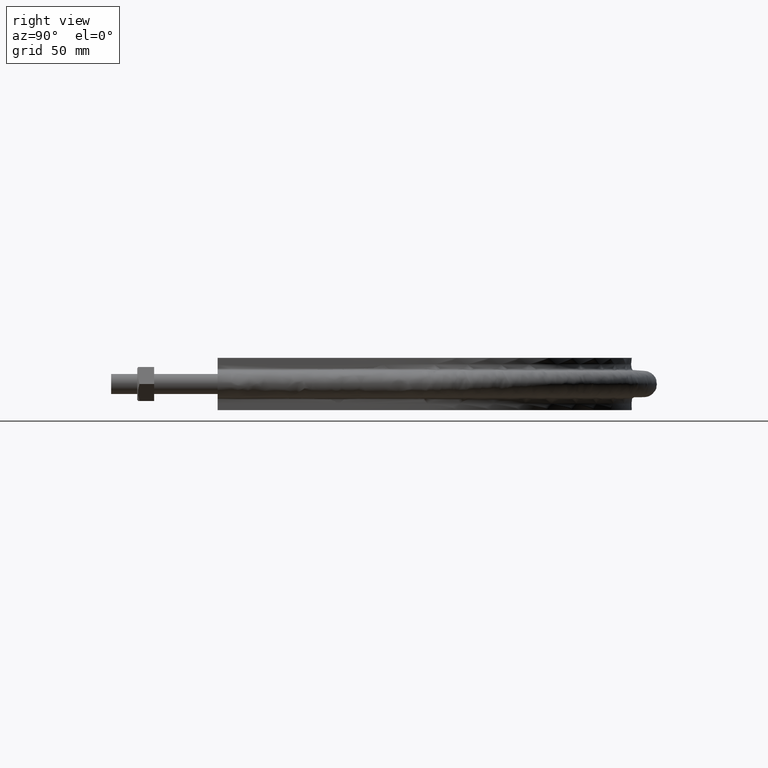
[diagram: clean part render]
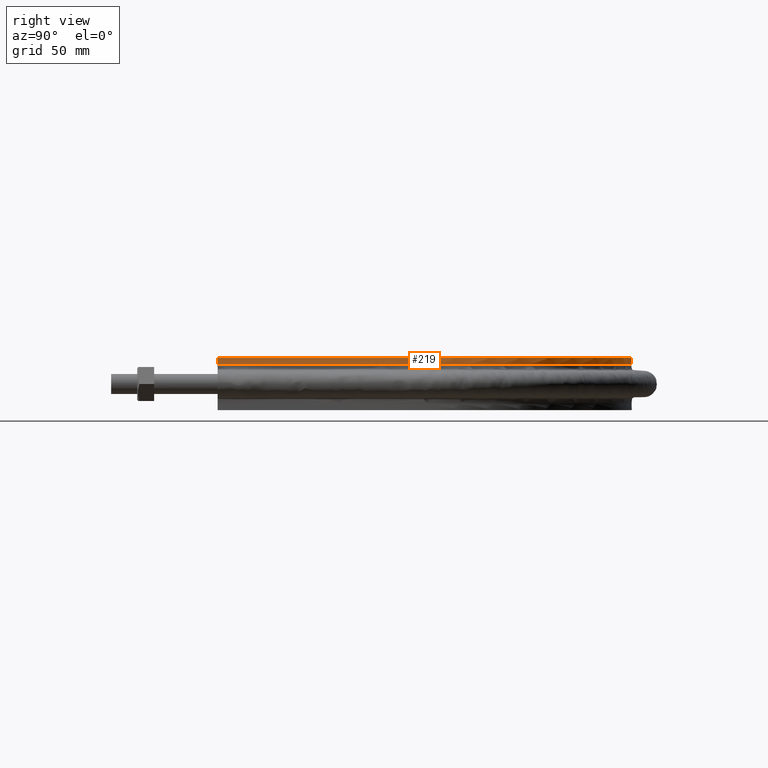
[diagram: same view with one face highlighted and labeled with its STEP entity id]
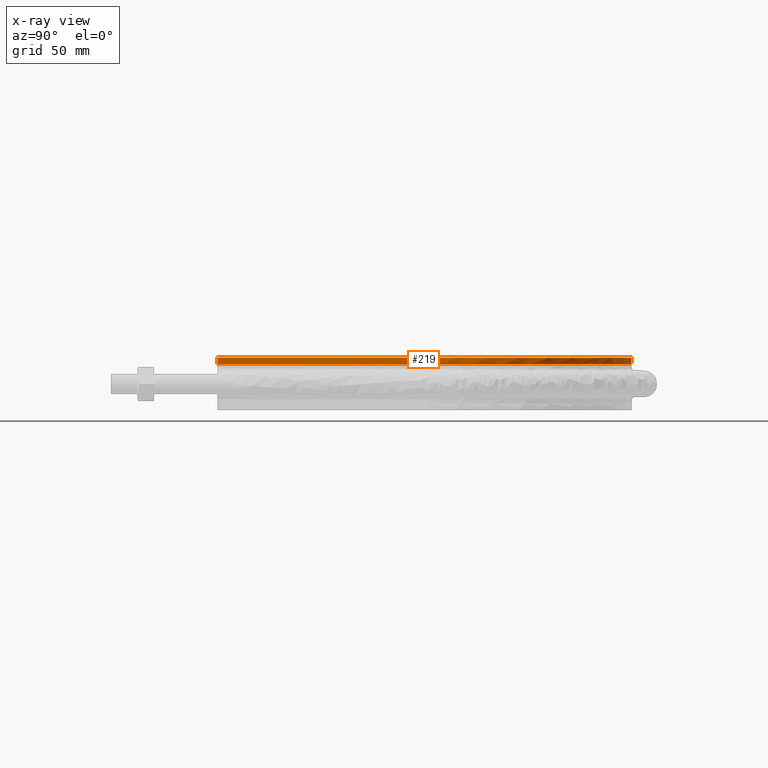
[diagram: x-ray of the same camera — body ghosted, the highlighted face saturated]
A machine part, right view. The second image highlights one B-rep face of the part: STEP entity #219.
The next image is the same camera in x-ray: the body ghosted, the highlighted face saturated — about 0% of this face is hidden behind the body in this view.
In plain terms, the highlighted face is a SurfaceOfExtrusion surface.
Its self-contained STEP definition (entity closure, byte-faithful):
#219 = ADVANCED_FACE( '', ( #260 ), #261, .F. );
#260 = FACE_OUTER_BOUND( '', #360, .T. );
#261 = SURFACE_OF_LINEAR_EXTRUSION( '', #361, #362 );
#360 = EDGE_LOOP( '', ( #1432, #1433, #1434, #1435 ) );
#361 = B_SPLINE_CURVE_WITH_KNOTS( '', 3, ( #1436, #1437, #1438, #1439, #1440, #1441, #1442, #1443, #1444, #1445, #1446, #1447, #1448, #1449, #1450, #1451, #1452, #1453, #1454, #1455, #1456, #1457, #1458, #1459, #1460, #1461, #1462, #1463, #1464, #1465, #1466, #1467, #1468, #1469, #1470, #1471, #1472, #1473, #1474, #1475, #1476, #1477, #1478, #1479, #1480, #1481, #1482, #1483, #1484, #1485, #1486, #1487, #1488, #1489, #1490, #1491, #1492, #1493, #1494, #1495, #1496, #1497, #1498, #1499, #1500, #1501, #1502, #1503, #1504, #1505, #1506, #1507, #1508, #1509, #1510, #1511, #1512, #1513, #1514, #1515, #1516, #1517, #1518, #1519, #1520, #1521, #1522, #1523, #1524, #1525, #1526, #1527, #1528, #1529, #1530, #1531, #1532, #1533, #1534 ), .UNSPECIFIED., .F., .F., ( 4, 1, 1, 2, 2, 2, 2, 2, 2, 2, 2, 2, 2, 2, 2, 2, 2, 2, 2, 2, 2, 2, 2, 2, 2, 2, 2, 2, 2, 2, 2, 2, 2, 2, 2, 2, 2, 2, 2, 2, 2, 2, 2, 2, 2, 2, 2, 2, 2, 1, 4 ), ( 0.000000000000000, 0.125000000000000, 0.187500000000001, 0.191406250000001, 0.195312500000001, 0.203125000000001, 0.218750000000000, 0.234375000000000, 0.242187500000000, 0.250000000000000, 0.281250000000000, 0.296874999999999, 0.312499999999999, 0.343749999999999, 0.359374999999999, 0.374999999999998, 0.382812499999998, 0.390624999999998, 0.406249999999998, 0.421874999999998, 0.437499999999998, 0.445312499999998, 0.453124999999998, 0.468749999999997, 0.484374999999997, 0.499999999999997, 0.507812499999997, 0.515624999999997, 0.531249999999997, 0.562499999999996, 0.570312499999996, 0.578124999999996, 0.593749999999996, 0.624999999999996, 0.640624999999995, 0.648437499999995, 0.656249999999995, 0.687499999999995, 0.703124999999995, 0.710937499999995, 0.718749999999994, 0.749999999999994, 0.765624999999994, 0.773437499999994, 0.781249999999994, 0.796874999999994, 0.804687499999994, 0.808593749999994, 0.812499999999994, 0.874999999999996, 1.00000000000000 ), .UNSPECIFIED. );
#362 = VECTOR( '', #1535, 1000.00000000000 );
#1432 = ORIENTED_EDGE( '', *, *, #1897, .F. );
#1433 = ORIENTED_EDGE( '', *, *, #1898, .T. );
#1434 = ORIENTED_EDGE( '', *, *, #1899, .T. );
#1435 = ORIENTED_EDGE( '', *, *, #1900, .F. );
#1436 = CARTESIAN_POINT( '', ( -161.250000000000, 81.6600000000001, 15.0000000000000 ) );
#1437 = CARTESIAN_POINT( '', ( -161.250000000000, 115.563927276507, 15.0000000000000 ) );
#1438 = CARTESIAN_POINT( '', ( -161.250000000000, 166.419818191268, 15.0000000000000 ) );
#1439 = CARTESIAN_POINT( '', ( -161.250000000000, 218.335206833420, 15.0000000000000 ) );
#1440 = CARTESIAN_POINT( '', ( -161.250000000000, 236.346668199065, 15.0000000000000 ) );
#1441 = CARTESIAN_POINT( '', ( -161.250000000000, 238.465663653846, 15.0000000000000 ) );
#1442 = CARTESIAN_POINT( '', ( -161.243741615224, 239.524697165994, 15.0000000000000 ) );
#1443 = CARTESIAN_POINT( '', ( -161.187611923992, 242.699026932333, 15.0000000000000 ) );
#1444 = CARTESIAN_POINT( '', ( -161.108242863812, 244.812135192751, 15.0000000000000 ) );
#1445 = CARTESIAN_POINT( '', ( -160.745588715640, 251.142221711587, 15.0000000000000 ) );
#1446 = CARTESIAN_POINT( '', ( -160.338016678097, 255.349980994409, 15.0000000000000 ) );
#1447 = CARTESIAN_POINT( '', ( -159.191876458923, 263.740947944732, 15.0000000000000 ) );
#1448 = CARTESIAN_POINT( '', ( -158.453325821623, 267.924156913583, 15.0000000000000 ) );
#1449 = CARTESIAN_POINT( '', ( -157.091309531563, 274.180115817004, 15.0000000000000 ) );
#1450 = CARTESIAN_POINT( '', ( -156.594870880089, 276.262287970310, 15.0000000000000 ) );
#1451 = CARTESIAN_POINT( '', ( -155.515254592872, 280.420198418966, 15.0000000000000 ) );
#1452 = CARTESIAN_POINT( '', ( -154.930819288684, 282.499501200111, 15.0000000000000 ) );
#1453 = CARTESIAN_POINT( '', ( -151.816759126114, 292.782149241196, 15.0000000000000 ) );
#1454 = CARTESIAN_POINT( '', ( -148.696455905705, 300.710402629824, 15.0000000000000 ) );
#1455 = CARTESIAN_POINT( '', ( -143.110303796314, 312.173924312049, 15.0000000000000 ) );
#1456 = CARTESIAN_POINT( '', ( -141.096992685260, 315.923474609417, 15.0000000000000 ) );
#1457 = CARTESIAN_POINT( '', ( -136.764997750155, 323.277977603622, 15.0000000000000 ) );
#1458 = CARTESIAN_POINT( '', ( -134.445179291471, 326.884599627094, 15.0000000000000 ) );
#1459 = CARTESIAN_POINT( '', ( -127.018507755949, 337.469813303293, 15.0000000000000 ) );
#1460 = CARTESIAN_POINT( '', ( -121.570256986600, 344.035627793821, 15.0000000000000 ) );
#1461 = CARTESIAN_POINT( '', ( -112.681469462408, 353.176788939192, 15.0000000000000 ) );
#1462 = CARTESIAN_POINT( '', ( -109.599239667978, 356.106015913386, 15.0000000000000 ) );
#1463 = CARTESIAN_POINT( '', ( -103.195598111763, 361.728242826460, 15.0000000000000 ) );
#1464 = CARTESIAN_POINT( '', ( -99.8742027120111, 364.421258925232, 15.0000000000000 ) );
#1465 = CARTESIAN_POINT( '', ( -94.7076655551528, 368.278617698205, 15.0000000000000 ) );
#1466 = CARTESIAN_POINT( '', ( -92.9523128122843, 369.535410245451, 15.0000000000000 ) );
#1467 = CARTESIAN_POINT( '', ( -89.4103563407889, 371.965747523355, 15.0000000000000 ) );
#1468 = CARTESIAN_POINT( '', ( -87.6203519636309, 373.141975231298, 15.0000000000000 ) );
#1469 = CARTESIAN_POINT( '', ( -82.1938545562555, 376.555051609463, 15.0000000000000 ) );
#1470 = CARTESIAN_POINT( '', ( -78.5007228381527, 378.675977497979, 15.0000000000000 ) );
#1471 = CARTESIAN_POINT( '', ( -70.9660651589494, 382.614109784332, 15.0000000000000 ) );
#1472 = CARTESIAN_POINT( '', ( -67.1247782821043, 384.431805517514, 15.0000000000000 ) );
#1473 = CARTESIAN_POINT( '', ( -59.2949804331995, 387.765872442500, 15.0000000000000 ) );
#1474 = CARTESIAN_POINT( '', ( -55.3064757162415, 389.282256436662, 15.0000000000000 ) );
#1475 = CARTESIAN_POINT( '', ( -49.2110169882597, 391.326165201076, 15.0000000000000 ) );
#1476 = CARTESIAN_POINT( '', ( -47.1588662869755, 391.969403219013, 15.0000000000000 ) );
#1477 = CARTESIAN_POINT( '', ( -43.0225422699778, 393.175460393611, 15.0000000000000 ) );
#1478 = CARTESIAN_POINT( '', ( -40.9492828236587, 393.735163863551, 15.0000000000000 ) );
#1479 = CARTESIAN_POINT( '', ( -34.7144271105598, 395.286125774618, 15.0000000000000 ) );
#1480 = CARTESIAN_POINT( '', ( -30.5377759878195, 396.149427107818, 15.0000000000000 ) );
#1481 = CARTESIAN_POINT( '', ( -22.1447346015546, 397.538271276923, 15.0000000000000 ) );
#1482 = CARTESIAN_POINT( '', ( -17.9283982116385, 398.064272005694, 15.0000000000000 ) );
#1483 = CARTESIAN_POINT( '', ( -9.45655674837369, 398.783363506043, 15.0000000000000 ) );
#1484 = CARTESIAN_POINT( '', ( -5.20105235312334, 398.976460041045, 15.0000000000000 ) );
#1485 = CARTESIAN_POINT( '', ( 1.21197356660109, 399.013083693530, 15.0000000000000 ) );
#1486 = CARTESIAN_POINT( '', ( 3.35461816619223, 398.983055613132, 15.0000000000000 ) );
#1487 = CARTESIAN_POINT( '', ( 7.65000933184692, 398.837138888968, 15.0000000000000 ) );
#1488 = CARTESIAN_POINT( '', ( 9.80526541349927, 398.720878236830, 15.0000000000000 ) );
#1489 = CARTESIAN_POINT( '', ( 16.2294008466087, 398.245673768406, 15.0000000000000 ) );
#1490 = CARTESIAN_POINT( '', ( 20.4744508388070, 397.760409311961, 15.0000000000000 ) );
#1491 = CARTESIAN_POINT( '', ( 33.0983091091204, 395.807403659312, 15.0000000000000 ) );
#1492 = CARTESIAN_POINT( '', ( 41.3659328497672, 393.842928972443, 15.0000000000000 ) );
#1493 = CARTESIAN_POINT( '', ( 51.5169566627442, 390.567495824280, 15.0000000000000 ) );
#1494 = CARTESIAN_POINT( '', ( 53.5379220141997, 389.871130748456, 15.0000000000000 ) );
#1495 = CARTESIAN_POINT( '', ( 57.5611393422531, 388.394795805829, 15.0000000000000 ) );
#1496 = CARTESIAN_POINT( '', ( 59.5651010699853, 387.614118598494, 15.0000000000000 ) );
#1497 = CARTESIAN_POINT( '', ( 65.5375088210214, 385.148760287829, 15.0000000000000 ) );
#1498 = CARTESIAN_POINT( '', ( 69.4271107189928, 383.357633487351, 15.0000000000000 ) );
#1499 = CARTESIAN_POINT( '', ( 80.8263169977384, 377.551870276663, 15.0000000000000 ) );
#1500 = CARTESIAN_POINT( '', ( 88.0655785560032, 373.103658782526, 15.0000000000000 ) );
#1501 = CARTESIAN_POINT( '', ( 98.3911116748475, 365.575941476319, 15.0000000000000 ) );
#1502 = CARTESIAN_POINT( '', ( 101.743876907629, 362.923837491375, 15.0000000000000 ) );
#1503 = CARTESIAN_POINT( '', ( 106.636124312730, 358.726120953866, 15.0000000000000 ) );
#1504 = CARTESIAN_POINT( '', ( 108.245579686573, 357.288515671054, 15.0000000000000 ) );
#1505 = CARTESIAN_POINT( '', ( 111.390201462317, 354.365055123601, 15.0000000000000 ) );
#1506 = CARTESIAN_POINT( '', ( 112.928863214009, 352.876337280872, 15.0000000000000 ) );
#1507 = CARTESIAN_POINT( '', ( 120.455962419381, 345.299443254918, 15.0000000000000 ) );
#1508 = CARTESIAN_POINT( '', ( 125.946497327452, 338.811934998674, 15.0000000000000 ) );
#1509 = CARTESIAN_POINT( '', ( 133.394129452832, 328.448537556354, 15.0000000000000 ) );
#1510 = CARTESIAN_POINT( '', ( 135.745443095657, 324.888821211344, 15.0000000000000 ) );
#1511 = CARTESIAN_POINT( '', ( 139.072140578718, 319.388622038567, 15.0000000000000 ) );
#1512 = CARTESIAN_POINT( '', ( 140.148607424952, 317.526591994231, 15.0000000000000 ) );
#1513 = CARTESIAN_POINT( '', ( 142.229173669268, 313.755686103863, 15.0000000000000 ) );
#1514 = CARTESIAN_POINT( '', ( 143.228421564998, 311.855781192481, 15.0000000000000 ) );
#1515 = CARTESIAN_POINT( '', ( 148.022708969335, 302.285132267420, 15.0000000000000 ) );
#1516 = CARTESIAN_POINT( '', ( 151.214899617919, 294.402074295562, 15.0000000000000 ) );
#1517 = CARTESIAN_POINT( '', ( 155.048522990437, 282.241270071979, 15.0000000000000 ) );
#1518 = CARTESIAN_POINT( '', ( 156.167598529334, 278.131742163795, 15.0000000000000 ) );
#1519 = CARTESIAN_POINT( '', ( 157.605754713961, 271.882765056023, 15.0000000000000 ) );
#1520 = CARTESIAN_POINT( '', ( 158.045000764586, 269.785636236286, 15.0000000000000 ) );
#1521 = CARTESIAN_POINT( '', ( 158.842043052515, 265.562693243972, 15.0000000000000 ) );
#1522 = CARTESIAN_POINT( '', ( 159.199937733800, 263.435033158721, 15.0000000000000 ) );
#1523 = CARTESIAN_POINT( '', ( 160.142503518764, 257.058048449527, 15.0000000000000 ) );
#1524 = CARTESIAN_POINT( '', ( 160.599631427592, 252.799128268431, 15.0000000000000 ) );
#1525 = CARTESIAN_POINT( '', ( 161.030667889772, 246.399450853400, 15.0000000000000 ) );
#1526 = CARTESIAN_POINT( '', ( 161.131834701316, 244.264339110525, 15.0000000000000 ) );
#1527 = CARTESIAN_POINT( '', ( 161.219474436493, 241.058827396670, 15.0000000000000 ) );
#1528 = CARTESIAN_POINT( '', ( 161.237998318118, 239.989849285454, 15.0000000000000 ) );
#1529 = CARTESIAN_POINT( '', ( 161.253558329441, 237.850939813204, 15.0000000000000 ) );
#1530 = CARTESIAN_POINT( '', ( 161.250000000000, 236.780982080492, 15.0000000000000 ) );
#1531 = CARTESIAN_POINT( '', ( 161.250000000000, 218.594384181400, 15.0000000000000 ) );
#1532 = CARTESIAN_POINT( '', ( 161.250000000000, 167.243990113375, 15.0000000000000 ) );
#1533 = CARTESIAN_POINT( '', ( 161.250000000000, 115.893596045350, 15.0000000000000 ) );
#1534 = CARTESIAN_POINT( '', ( 161.250000000000, 81.6599999999994, 15.0000000000000 ) );
#1535 = DIRECTION( '', ( 0.000000000000000, 0.000000000000000, 1.00000000000000 ) );
#1897 = EDGE_CURVE( '', #1969, #1970, #1971, .T. );
#1898 = EDGE_CURVE( '', #1969, #1972, #1973, .T. );
#1899 = EDGE_CURVE( '', #1972, #1974, #1975, .T. );
#1900 = EDGE_CURVE( '', #1970, #1974, #1976, .T. );
#1969 = VERTEX_POINT( '', #2095 );
#1970 = VERTEX_POINT( '', #2096 );
#1971 = B_SPLINE_CURVE_WITH_KNOTS( '', 3, ( #2097, #2098, #2099, #2100, #2101, #2102, #2103, #2104, #2105, #2106, #2107, #2108, #2109, #2110, #2111, #2112, #2113, #2114 ), .UNSPECIFIED., .F., .F., ( 4, 3, 1, 1, 1, 1, 1, 1, 1, 1, 3, 4 ), ( 0.000000000000000, 0.0909090909090909, 0.181818181818182, 0.272727272727273, 0.363636363636364, 0.454545454545455, 0.545454545454545, 0.636363636363636, 0.727272727272727, 0.818181818181818, 0.909090909090909, 1.00000000000000 ), .UNSPECIFIED. );
#1972 = VERTEX_POINT( '', #2115 );
#1973 = LINE( '', #2116, #2117 );
#1974 = VERTEX_POINT( '', #2118 );
#1975 = B_SPLINE_CURVE_WITH_KNOTS( '', 3, ( #2119, #2120, #2121, #2122, #2123, #2124, #2125, #2126, #2127, #2128, #2129, #2130, #2131, #2132, #2133, #2134, #2135, #2136, #2137, #2138, #2139, #2140, #2141, #2142, #2143, #2144, #2145, #2146, #2147, #2148, #2149, #2150, #2151, #2152, #2153, #2154, #2155, #2156, #2157, #2158, #2159, #2160, #2161, #2162, #2163, #2164, #2165, #2166, #2167, #2168, #2169, #2170, #2171, #2172, #2173, #2174, #2175, #2176, #2177, #2178, #2179, #2180, #2181, #2182, #2183, #2184, #2185, #2186, #2187, #2188, #2189, #2190, #2191, #2192, #2193, #2194, #2195, #2196, #2197, #2198, #2199, #2200, #2201, #2202, #2203, #2204, #2205, #2206, #2207, #2208, #2209, #2210, #2211, #2212, #2213, #2214, #2215, #2216, #2217, #2218, #2219, #2220, #2221, #2222, #2223, #2224, #2225, #2226, #2227, #2228, #2229, #2230 ), .UNSPECIFIED., .F., .F., ( 4, 1, 2, 2, 2, 2, 2, 2, 2, 2, 2, 2, 2, 2, 2, 2, 2, 2, 2, 2, 2, 2, 2, 2, 2, 2, 2, 2, 2, 2, 2, 2, 2, 2, 2, 2, 2, 2, 2, 2, 2, 2, 2, 2, 2, 2, 2, 2, 2, 2, 2, 2, 2, 2, 2, 1, 4 ), ( 4.16333634234434E-017, 0.102905858842174, 0.154358788263261, 0.157574596352079, 0.160790404440896, 0.167222020618532, 0.180085252973804, 0.192948485329075, 0.205811717684346, 0.212243333861982, 0.215459141950800, 0.218674950039618, 0.231538182394889, 0.244401414750161, 0.257264647105432, 0.270127879460704, 0.276559495638340, 0.282991111815975, 0.295854344171247, 0.308717576526518, 0.321580808881790, 0.328012425059426, 0.334444041237062, 0.347307273592333, 0.360170505947605, 0.373033738302876, 0.379465354480512, 0.385896970658148, 0.398760203013419, 0.411623435368691, 0.424486667723962, 0.437349900079234, 0.463076364789777, 0.475939597145048, 0.488802829500320, 0.495234445677955, 0.501666061855591, 0.514529294210863, 0.527392526566134, 0.540255758921406, 0.546687375099042, 0.553118991276677, 0.565982223631949, 0.578845455987221, 0.591708688342492, 0.598140304520128, 0.604571920697764, 0.617435153053036, 0.630298385408308, 0.643161617763579, 0.656024850118851, 0.662456466296487, 0.665672274385305, 0.668888082474123, 0.694614547184667, 0.720341011895211, 0.823246870737388 ), .UNSPECIFIED. );
#1976 = LINE( '', #2231, #2232 );
#2095 = CARTESIAN_POINT( '', ( -161.250000000000, 81.6600000000000, 15.0000000000000 ) );
#2096 = CARTESIAN_POINT( '', ( 161.250000000000, 81.6600000000000, 15.0000000000000 ) );
#2097 = CARTESIAN_POINT( '', ( -161.250000000000, 81.6600000000000, 15.0000000000000 ) );
#2098 = CARTESIAN_POINT( '', ( -161.250000000000, 133.693333333333, 15.0000000000000 ) );
#2099 = CARTESIAN_POINT( '', ( -161.250000000000, 185.726666666667, 15.0000000000000 ) );
#2100 = CARTESIAN_POINT( '', ( -161.250000000000, 237.760000000000, 15.0000000000000 ) );
#2101 = CARTESIAN_POINT( '', ( -161.250000000000, 256.509565895344, 15.0000000000000 ) );
#2102 = CARTESIAN_POINT( '', ( -154.633958016895, 294.047333691719, 15.0000000000000 ) );
#2103 = CARTESIAN_POINT( '', ( -126.058757551235, 343.534471903553, 15.0000000000000 ) );
#2104 = CARTESIAN_POINT( '', ( -82.2790104957763, 380.271791065797, 15.0000000000000 ) );
#2105 = CARTESIAN_POINT( '', ( -28.5752004656595, 399.817941994703, 15.0000000000000 ) );
#2106 = CARTESIAN_POINT( '', ( 28.5752004656597, 399.817941994703, 15.0000000000000 ) );
#2107 = CARTESIAN_POINT( '', ( 82.2790104957765, 380.271791065797, 15.0000000000000 ) );
#2108 = CARTESIAN_POINT( '', ( 126.058757551235, 343.534471903553, 15.0000000000000 ) );
#2109 = CARTESIAN_POINT( '', ( 154.633958016895, 294.047333691719, 15.0000000000000 ) );
#2110 = CARTESIAN_POINT( '', ( 161.250000000000, 256.509565895344, 15.0000000000000 ) );
#2111 = CARTESIAN_POINT( '', ( 161.250000000000, 237.760000000000, 15.0000000000000 ) );
#2112 = CARTESIAN_POINT( '', ( 161.250000000000, 185.726666666667, 15.0000000000000 ) );
#2113 = CARTESIAN_POINT( '', ( 161.250000000000, 133.693333333333, 15.0000000000000 ) );
#2114 = CARTESIAN_POINT( '', ( 161.250000000000, 81.6600000000000, 15.0000000000000 ) );
#2115 = CARTESIAN_POINT( '', ( -161.250000000000, 81.6600000000001, 20.0000000000000 ) );
#2116 = CARTESIAN_POINT( '', ( -161.250000000000, 81.6600000000002, 15.0000000000000 ) );
#2117 = VECTOR( '', #2860, 1000.00000000000 );
#2118 = CARTESIAN_POINT( '', ( 161.250000000000, 81.6599999999997, 20.0000000000000 ) );
#2119 = CARTESIAN_POINT( '', ( -161.250000000000, 81.6600000000001, 20.0000000000000 ) );
#2120 = CARTESIAN_POINT( '', ( -161.250000000000, 115.961965199335, 20.0000000000000 ) );
#2121 = CARTESIAN_POINT( '', ( -161.250000000000, 167.414912998338, 20.0000000000000 ) );
#2122 = CARTESIAN_POINT( '', ( -161.250000000001, 218.867860797341, 20.0000000000000 ) );
#2123 = CARTESIAN_POINT( '', ( -161.250000000000, 237.090779809488, 20.0000000000000 ) );
#2124 = CARTESIAN_POINT( '', ( -161.251970915232, 238.162717887780, 20.0000000000000 ) );
#2125 = CARTESIAN_POINT( '', ( -161.233234905318, 240.306574877112, 20.0000000000000 ) );
#2126 = CARTESIAN_POINT( '', ( -161.212573749003, 241.378493826837, 20.0000000000000 ) );
#2127 = CARTESIAN_POINT( '', ( -161.118167583804, 244.594223272436, 20.0000000000000 ) );
#2128 = CARTESIAN_POINT( '', ( -161.012016167499, 246.737364921140, 20.0000000000000 ) );
#2129 = CARTESIAN_POINT( '', ( -160.568059920858, 253.130988149219, 20.0000000000000 ) );
#2130 = CARTESIAN_POINT( '', ( -160.104407936144, 257.357673118891, 20.0000000000000 ) );
#2131 = CARTESIAN_POINT( '', ( -158.852451542726, 265.741864153590, 20.0000000000000 ) );
#2132 = CARTESIAN_POINT( '', ( -158.063775191925, 269.899290962943, 20.0000000000000 ) );
#2133 = CARTESIAN_POINT( '', ( -156.162945028249, 278.145216045006, 20.0000000000000 ) );
#2134 = CARTESIAN_POINT( '', ( -155.050685017919, 282.233691688519, 20.0000000000000 ) );
#2135 = CARTESIAN_POINT( '', ( -153.134376609016, 288.313577201092, 20.0000000000000 ) );
#2136 = CARTESIAN_POINT( '', ( -152.454186526902, 290.331379550327, 20.0000000000000 ) );
#2137 = CARTESIAN_POINT( '', ( -151.370652027000, 293.344605513939, 20.0000000000000 ) );
#2138 = CARTESIAN_POINT( '', ( -150.998932061583, 294.346767858148, 20.0000000000000 ) );
#2139 = CARTESIAN_POINT( '', ( -150.234219283645, 296.346559599476, 20.0000000000000 ) );
#2140 = CARTESIAN_POINT( '', ( -149.840760044902, 297.345319193445, 20.0000000000000 ) );
#2141 = CARTESIAN_POINT( '', ( -147.826549821755, 302.311248733167, 20.0000000000000 ) );
#2142 = CARTESIAN_POINT( '', ( -146.066449266341, 306.193281154291, 20.0000000000000 ) );
#2143 = CARTESIAN_POINT( '', ( -142.261276995409, 313.783543362078, 20.0000000000000 ) );
#2144 = CARTESIAN_POINT( '', ( -140.215650977874, 317.491435082423, 20.0000000000000 ) );
#2145 = CARTESIAN_POINT( '', ( -135.842265497154, 324.735146597989, 20.0000000000000 ) );
#2146 = CARTESIAN_POINT( '', ( -133.514264763887, 328.270819243668, 20.0000000000000 ) );
#2147 = CARTESIAN_POINT( '', ( -128.572511593199, 335.167885850243, 20.0000000000000 ) );
#2148 = CARTESIAN_POINT( '', ( -125.958458072441, 338.529096181761, 20.0000000000000 ) );
#2149 = CARTESIAN_POINT( '', ( -121.814782223253, 343.435151638855, 20.0000000000000 ) );
#2150 = CARTESIAN_POINT( '', ( -120.395398909186, 345.048693263547, 20.0000000000000 ) );
#2151 = CARTESIAN_POINT( '', ( -117.508079182862, 348.201555524784, 20.0000000000000 ) );
#2152 = CARTESIAN_POINT( '', ( -116.037116900755, 349.744609171353, 20.0000000000000 ) );
#2153 = CARTESIAN_POINT( '', ( -111.544115229341, 354.275828924885, 20.0000000000000 ) );
#2154 = CARTESIAN_POINT( '', ( -108.441840326105, 357.165906302353, 20.0000000000000 ) );
#2155 = CARTESIAN_POINT( '', ( -102.027993104789, 362.690192845028, 20.0000000000000 ) );
#2156 = CARTESIAN_POINT( '', ( -98.7162675526882, 365.324214680089, 20.0000000000000 ) );
#2157 = CARTESIAN_POINT( '', ( -91.8819928807456, 370.334524400557, 20.0000000000000 ) );
#2158 = CARTESIAN_POINT( '', ( -88.3596907755534, 372.711114263877, 20.0000000000000 ) );
#2159 = CARTESIAN_POINT( '', ( -82.9131148904033, 376.076579870328, 20.0000000000000 ) );
#2160 = CARTESIAN_POINT( '', ( -81.0683875074570, 377.166193615633, 20.0000000000000 ) );
#2161 = CARTESIAN_POINT( '', ( -77.3317958302741, 379.272768040218, 20.0000000000000 ) );
#2162 = CARTESIAN_POINT( '', ( -75.4485733332860, 380.284931874204, 20.0000000000000 ) );
#2163 = CARTESIAN_POINT( '', ( -69.7551854747389, 383.200972491039, 20.0000000000000 ) );
#2164 = CARTESIAN_POINT( '', ( -65.9013247113453, 384.984467170128, 20.0000000000000 ) );
#2165 = CARTESIAN_POINT( '', ( -58.0804202517138, 388.239634254255, 20.0000000000000 ) );
#2166 = CARTESIAN_POINT( '', ( -54.1132805496319, 389.711042160399, 20.0000000000000 ) );
#2167 = CARTESIAN_POINT( '', ( -46.0659693145768, 392.342451988917, 20.0000000000000 ) );
#2168 = CARTESIAN_POINT( '', ( -41.9857908178061, 393.502434725825, 20.0000000000000 ) );
#2169 = CARTESIAN_POINT( '', ( -35.7788001219004, 395.003484577897, 20.0000000000000 ) );
#2170 = CARTESIAN_POINT( '', ( -33.6953274684594, 395.463953402796, 20.0000000000000 ) );
#2171 = CARTESIAN_POINT( '', ( -29.4987718017198, 396.303313649412, 20.0000000000000 ) );
#2172 = CARTESIAN_POINT( '', ( -27.3829209230280, 396.682429210544, 20.0000000000000 ) );
#2173 = CARTESIAN_POINT( '', ( -21.0466853046310, 397.686912615105, 20.0000000000000 ) );
#2174 = CARTESIAN_POINT( '', ( -16.8206764592023, 398.183540422579, 20.0000000000000 ) );
#2175 = CARTESIAN_POINT( '', ( -8.36508872482800, 398.843213611926, 20.0000000000000 ) );
#2176 = CARTESIAN_POINT( '', ( -4.13550690496985, 399.005985131345, 20.0000000000000 ) );
#2177 = CARTESIAN_POINT( '', ( 4.32719410328482, 399.000998872240, 20.0000000000000 ) );
#2178 = CARTESIAN_POINT( '', ( 8.56031456561338, 398.833122058385, 20.0000000000000 ) );
#2179 = CARTESIAN_POINT( '', ( 17.0301467584853, 398.161802783819, 20.0000000000000 ) );
#2180 = CARTESIAN_POINT( '', ( 21.2680294419037, 397.657983918810, 20.0000000000000 ) );
#2181 = CARTESIAN_POINT( '', ( 33.9802165437896, 395.623709791004, 20.0000000000000 ) );
#2182 = CARTESIAN_POINT( '', ( 42.2310729782497, 393.606818672319, 20.0000000000000 ) );
#2183 = CARTESIAN_POINT( '', ( 54.2908410328614, 389.647616386271, 20.0000000000000 ) );
#2184 = CARTESIAN_POINT( '', ( 58.2576520963785, 388.171179239561, 20.0000000000000 ) );
#2185 = CARTESIAN_POINT( '', ( 66.0843154338650, 384.902728651073, 20.0000000000000 ) );
#2186 = CARTESIAN_POINT( '', ( 69.9441313402946, 383.110607908776, 20.0000000000000 ) );
#2187 = CARTESIAN_POINT( '', ( 75.6509454424334, 380.177805907142, 20.0000000000000 ) );
#2188 = CARTESIAN_POINT( '', ( 77.5426772134473, 379.157302999127, 20.0000000000000 ) );
#2189 = CARTESIAN_POINT( '', ( 81.2664045092939, 377.050881392271, 20.0000000000000 ) );
#2190 = CARTESIAN_POINT( '', ( 83.1015353490393, 375.963526390945, 20.0000000000000 ) );
#2191 = CARTESIAN_POINT( '', ( 88.5280133782913, 372.600668685160, 20.0000000000000 ) );
#2192 = CARTESIAN_POINT( '', ( 92.0404830075295, 370.224420446988, 20.0000000000000 ) );
#2193 = CARTESIAN_POINT( '', ( 98.8614844593562, 365.211446553421, 20.0000000000000 ) );
#2194 = CARTESIAN_POINT( '', ( 102.169735354850, 362.574362086852, 20.0000000000000 ) );
#2195 = CARTESIAN_POINT( '', ( 108.581664191107, 357.038904500290, 20.0000000000000 ) );
#2196 = CARTESIAN_POINT( '', ( 111.685472441704, 354.140697817162, 20.0000000000000 ) );
#2197 = CARTESIAN_POINT( '', ( 116.183929168266, 349.592534669378, 20.0000000000000 ) );
#2198 = CARTESIAN_POINT( '', ( 117.657197177955, 348.042994176750, 20.0000000000000 ) );
#2199 = CARTESIAN_POINT( '', ( 120.549969424761, 344.875243978805, 20.0000000000000 ) );
#2200 = CARTESIAN_POINT( '', ( 121.961372900329, 343.265822195802, 20.0000000000000 ) );
#2201 = CARTESIAN_POINT( '', ( 126.084231292281, 338.370894215506, 20.0000000000000 ) );
#2202 = CARTESIAN_POINT( '', ( 128.687862132818, 335.014884428991, 20.0000000000000 ) );
#2203 = CARTESIAN_POINT( '', ( 133.614104291603, 328.123086121269, 20.0000000000000 ) );
#2204 = CARTESIAN_POINT( '', ( 135.936741699420, 324.587314290540, 20.0000000000000 ) );
#2205 = CARTESIAN_POINT( '', ( 140.303187725939, 317.337393388616, 20.0000000000000 ) );
#2206 = CARTESIAN_POINT( '', ( 142.347002366260, 313.623248169678, 20.0000000000000 ) );
#2207 = CARTESIAN_POINT( '', ( 145.199960385569, 307.915917263360, 20.0000000000000 ) );
#2208 = CARTESIAN_POINT( '', ( 146.115586045392, 305.990852287166, 20.0000000000000 ) );
#2209 = CARTESIAN_POINT( '', ( 147.874337612238, 302.094341522095, 20.0000000000000 ) );
#2210 = CARTESIAN_POINT( '', ( 148.719087610205, 300.118601627142, 20.0000000000000 ) );
#2211 = CARTESIAN_POINT( '', ( 151.123452875939, 294.167112728362, 20.0000000000000 ) );
#2212 = CARTESIAN_POINT( '', ( 152.557447500547, 290.159603132712, 20.0000000000000 ) );
#2213 = CARTESIAN_POINT( '', ( 155.097987031580, 282.067332444642, 20.0000000000000 ) );
#2214 = CARTESIAN_POINT( '', ( 156.204785204810, 277.982631102588, 20.0000000000000 ) );
#2215 = CARTESIAN_POINT( '', ( 158.096571563126, 269.737307439230, 20.0000000000000 ) );
#2216 = CARTESIAN_POINT( '', ( 158.881533638948, 265.576678958265, 20.0000000000000 ) );
#2217 = CARTESIAN_POINT( '', ( 160.126485202368, 257.178754900732, 20.0000000000000 ) );
#2218 = CARTESIAN_POINT( '', ( 160.586476129898, 252.941459663871, 20.0000000000000 ) );
#2219 = CARTESIAN_POINT( '', ( 161.023852965700, 246.525921502259, 20.0000000000000 ) );
#2220 = CARTESIAN_POINT( '', ( 161.127010288297, 244.383125914019, 20.0000000000000 ) );
#2221 = CARTESIAN_POINT( '', ( 161.217116290897, 241.171655465550, 20.0000000000000 ) );
#2222 = CARTESIAN_POINT( '', ( 161.236411497612, 240.101144468191, 20.0000000000000 ) );
#2223 = CARTESIAN_POINT( '', ( 161.253465436087, 237.960080668608, 20.0000000000000 ) );
#2224 = CARTESIAN_POINT( '', ( 161.250233854434, 236.889525944066, 20.0000000000000 ) );
#2225 = CARTESIAN_POINT( '', ( 161.248232465993, 227.254585994228, 20.0000000000000 ) );
#2226 = CARTESIAN_POINT( '', ( 161.250000000000, 218.690201811974, 20.0000000000000 ) );
#2227 = CARTESIAN_POINT( '', ( 161.250000000000, 201.561426585477, 20.0000000000000 ) );
#2228 = CARTESIAN_POINT( '', ( 161.250000000000, 158.739488519236, 20.0000000000000 ) );
#2229 = CARTESIAN_POINT( '', ( 161.250000000000, 115.917550452993, 20.0000000000000 ) );
#2230 = CARTESIAN_POINT( '', ( 161.250000000000, 81.6599999999989, 20.0000000000000 ) );
#2231 = CARTESIAN_POINT( '', ( 161.250000000000, 81.6600000000001, 15.0000000000000 ) );
#2232 = VECTOR( '', #2861, 1000.00000000000 );
#2860 = DIRECTION( '', ( 0.000000000000000, 0.000000000000000, 1.00000000000000 ) );
#2861 = DIRECTION( '', ( 0.000000000000000, 0.000000000000000, 1.00000000000000 ) );